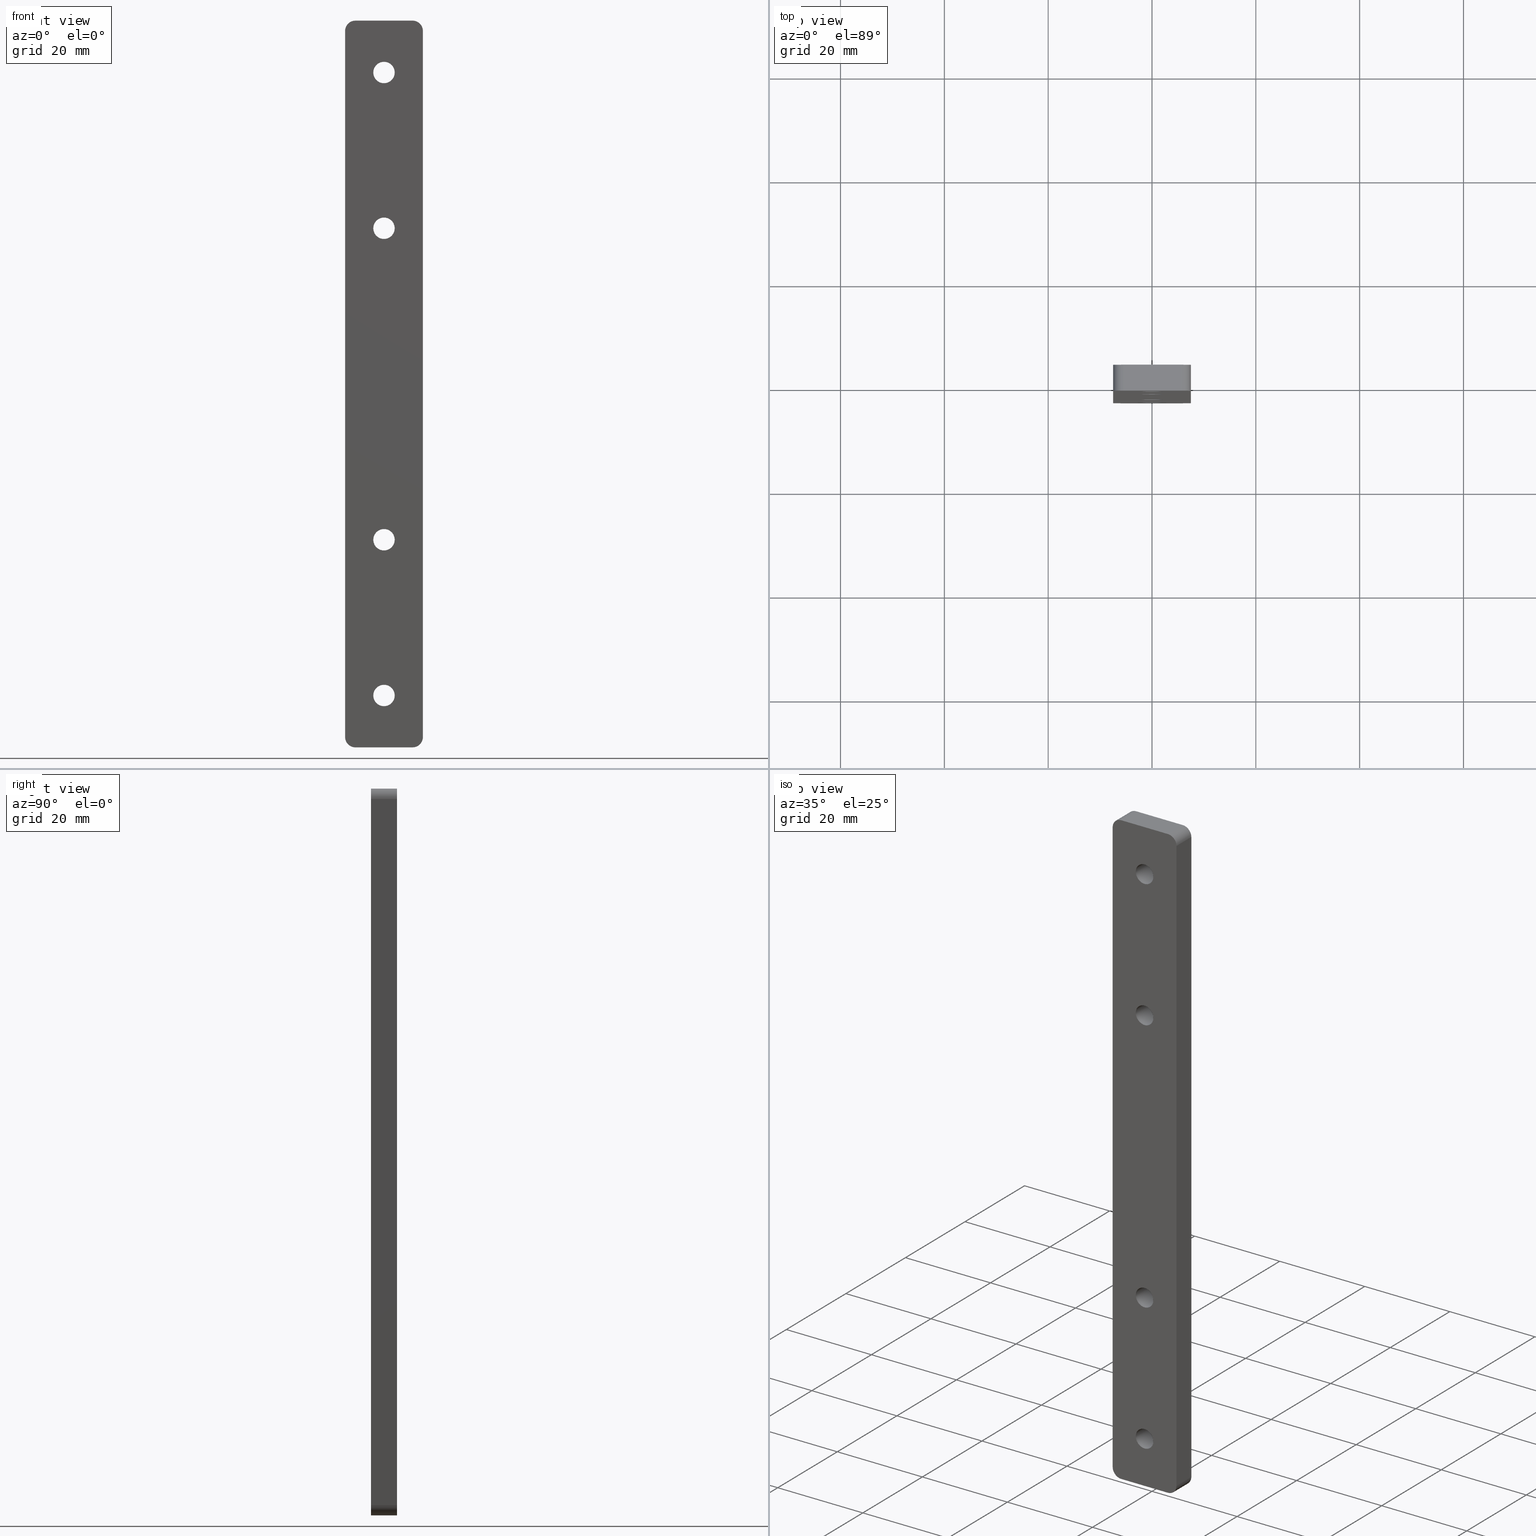
[diagram: canonical four-view strip — front | top / right | iso, engineering-drawing reading convention]
A machine part, canonical four-view strip (front | top / right | iso — engineering-drawing reading convention). The complete STEP part file that produces these views, byte-faithful:
ISO-10303-21;
HEADER;
/* Generated by software containing ST-Developer
 * from STEP Tools, Inc. (www.steptools.com) 
 */

FILE_DESCRIPTION(
/* description */ ('PIATTO X ANGOLARI DI RINFORZO INT.SPEC.'),
/* implementation_level */ '2;1');

FILE_NAME(
/* name */ 
'Q:\\Catalogo\\2_Accessori Dierre\\Per Download Web e catalogo cartace
o\\CATALOGO ELEMENTI ASSEMBLAGGIO\\PAGINA 21\\DPSXX0001021.stp',
/* time_stamp */ '2018-11-02T10:00:43+01:00',
/* author */ ('fzagni'),
/* organization */ (''),
/* preprocessor_version */ 'ST-DEVELOPER v16.1',
/* originating_system */ 'Autodesk Inventor 2016',
/* authorisation */ '');

FILE_SCHEMA (('AUTOMOTIVE_DESIGN { 1 0 10303 214 3 1 1 }'));
ENDSEC;

DATA;
#10=MECHANICAL_DESIGN_GEOMETRIC_PRESENTATION_REPRESENTATION('',(#13),#447);
#11=SHAPE_REPRESENTATION_RELATIONSHIP('SRR','None',#456,#12);
#12=ADVANCED_BREP_SHAPE_REPRESENTATION('',(#14),#446);
#13=STYLED_ITEM('',(#465),#14);
#14=MANIFOLD_SOLID_BREP('Solido1',#263);
#15=PLANE('',#280);
#16=PLANE('',#281);
#17=PLANE('',#287);
#18=PLANE('',#290);
#19=PLANE('',#293);
#20=PLANE('',#294);
#21=LINE('',#399,#37);
#22=LINE('',#402,#38);
#23=LINE('',#405,#39);
#24=LINE('',#407,#40);
#25=LINE('',#408,#41);
#26=LINE('',#411,#42);
#27=LINE('',#415,#43);
#28=LINE('',#419,#44);
#29=LINE('',#424,#45);
#30=LINE('',#427,#46);
#31=LINE('',#428,#47);
#32=LINE('',#433,#48);
#33=LINE('',#434,#49);
#34=LINE('',#437,#50);
#35=LINE('',#438,#51);
#36=LINE('',#442,#52);
#37=VECTOR('',#325,5.);
#38=VECTOR('',#328,5.);
#39=VECTOR('',#331,11.);
#40=VECTOR('',#332,5.);
#41=VECTOR('',#333,11.);
#42=VECTOR('',#336,136.);
#43=VECTOR('',#339,11.);
#44=VECTOR('',#342,136.);
#45=VECTOR('',#349,5.);
#46=VECTOR('',#352,5.);
#47=VECTOR('',#353,136.);
#48=VECTOR('',#358,5.);
#49=VECTOR('',#359,5.);
#50=VECTOR('',#362,11.);
#51=VECTOR('',#363,5.);
#52=VECTOR('',#370,136.);
#53=FACE_BOUND('',#80,.T.);
#54=FACE_BOUND('',#82,.T.);
#55=FACE_BOUND('',#84,.T.);
#56=FACE_BOUND('',#86,.T.);
#57=FACE_BOUND('',#90,.T.);
#58=FACE_BOUND('',#91,.T.);
#59=FACE_BOUND('',#92,.T.);
#60=FACE_BOUND('',#93,.T.);
#61=FACE_BOUND('',#101,.T.);
#62=FACE_BOUND('',#102,.T.);
#63=FACE_BOUND('',#103,.T.);
#64=FACE_BOUND('',#104,.T.);
#65=FACE_OUTER_BOUND('',#79,.T.);
#66=FACE_OUTER_BOUND('',#81,.T.);
#67=FACE_OUTER_BOUND('',#83,.T.);
#68=FACE_OUTER_BOUND('',#85,.T.);
#69=FACE_OUTER_BOUND('',#87,.T.);
#70=FACE_OUTER_BOUND('',#88,.T.);
#71=FACE_OUTER_BOUND('',#89,.T.);
#72=FACE_OUTER_BOUND('',#94,.T.);
#73=FACE_OUTER_BOUND('',#95,.T.);
#74=FACE_OUTER_BOUND('',#96,.T.);
#75=FACE_OUTER_BOUND('',#97,.T.);
#76=FACE_OUTER_BOUND('',#98,.T.);
#77=FACE_OUTER_BOUND('',#99,.T.);
#78=FACE_OUTER_BOUND('',#100,.T.);
#79=EDGE_LOOP('',(#177));
#80=EDGE_LOOP('',(#178));
#81=EDGE_LOOP('',(#179));
#82=EDGE_LOOP('',(#180));
#83=EDGE_LOOP('',(#181));
#84=EDGE_LOOP('',(#182));
#85=EDGE_LOOP('',(#183));
#86=EDGE_LOOP('',(#184));
#87=EDGE_LOOP('',(#185,#186,#187,#188));
#88=EDGE_LOOP('',(#189,#190,#191,#192));
#89=EDGE_LOOP('',(#193,#194,#195,#196,#197,#198,#199,#200));
#90=EDGE_LOOP('',(#201));
#91=EDGE_LOOP('',(#202));
#92=EDGE_LOOP('',(#203));
#93=EDGE_LOOP('',(#204));
#94=EDGE_LOOP('',(#205,#206,#207,#208));
#95=EDGE_LOOP('',(#209,#210,#211,#212));
#96=EDGE_LOOP('',(#213,#214,#215,#216));
#97=EDGE_LOOP('',(#217,#218,#219,#220));
#98=EDGE_LOOP('',(#221,#222,#223,#224));
#99=EDGE_LOOP('',(#225,#226,#227,#228));
#100=EDGE_LOOP('',(#229,#230,#231,#232,#233,#234,#235,#236));
#101=EDGE_LOOP('',(#237));
#102=EDGE_LOOP('',(#238));
#103=EDGE_LOOP('',(#239));
#104=EDGE_LOOP('',(#240));
#105=CIRCLE('',#266,2.067);
#106=CIRCLE('',#267,2.067);
#107=CIRCLE('',#269,2.067);
#108=CIRCLE('',#270,2.067);
#109=CIRCLE('',#272,2.067);
#110=CIRCLE('',#273,2.067);
#111=CIRCLE('',#275,2.067);
#112=CIRCLE('',#276,2.067);
#113=CIRCLE('',#278,2.);
#114=CIRCLE('',#279,2.);
#115=CIRCLE('',#282,2.);
#116=CIRCLE('',#283,2.);
#117=CIRCLE('',#284,2.);
#118=CIRCLE('',#286,2.);
#119=CIRCLE('',#289,2.);
#120=CIRCLE('',#292,2.);
#121=VERTEX_POINT('',#375);
#122=VERTEX_POINT('',#377);
#123=VERTEX_POINT('',#380);
#124=VERTEX_POINT('',#382);
#125=VERTEX_POINT('',#385);
#126=VERTEX_POINT('',#387);
#127=VERTEX_POINT('',#390);
#128=VERTEX_POINT('',#392);
#129=VERTEX_POINT('',#395);
#130=VERTEX_POINT('',#396);
#131=VERTEX_POINT('',#398);
#132=VERTEX_POINT('',#400);
#133=VERTEX_POINT('',#404);
#134=VERTEX_POINT('',#406);
#135=VERTEX_POINT('',#410);
#136=VERTEX_POINT('',#412);
#137=VERTEX_POINT('',#414);
#138=VERTEX_POINT('',#416);
#139=VERTEX_POINT('',#418);
#140=VERTEX_POINT('',#422);
#141=VERTEX_POINT('',#426);
#142=VERTEX_POINT('',#430);
#143=VERTEX_POINT('',#431);
#144=VERTEX_POINT('',#436);
#145=EDGE_CURVE('',#121,#121,#105,.T.);
#146=EDGE_CURVE('',#122,#122,#106,.T.);
#147=EDGE_CURVE('',#123,#123,#107,.T.);
#148=EDGE_CURVE('',#124,#124,#108,.T.);
#149=EDGE_CURVE('',#125,#125,#109,.T.);
#150=EDGE_CURVE('',#126,#126,#110,.T.);
#151=EDGE_CURVE('',#127,#127,#111,.T.);
#152=EDGE_CURVE('',#128,#128,#112,.T.);
#153=EDGE_CURVE('',#129,#130,#113,.T.);
#154=EDGE_CURVE('',#130,#131,#21,.T.);
#155=EDGE_CURVE('',#131,#132,#114,.T.);
#156=EDGE_CURVE('',#132,#129,#22,.T.);
#157=EDGE_CURVE('',#130,#133,#23,.T.);
#158=EDGE_CURVE('',#134,#133,#24,.T.);
#159=EDGE_CURVE('',#134,#131,#25,.T.);
#160=EDGE_CURVE('',#135,#129,#26,.T.);
#161=EDGE_CURVE('',#136,#135,#115,.T.);
#162=EDGE_CURVE('',#137,#136,#27,.T.);
#163=EDGE_CURVE('',#138,#137,#116,.T.);
#164=EDGE_CURVE('',#138,#139,#28,.T.);
#165=EDGE_CURVE('',#133,#139,#117,.T.);
#166=EDGE_CURVE('',#140,#134,#118,.T.);
#167=EDGE_CURVE('',#139,#140,#29,.T.);
#168=EDGE_CURVE('',#141,#138,#30,.T.);
#169=EDGE_CURVE('',#140,#141,#31,.T.);
#170=EDGE_CURVE('',#142,#143,#119,.T.);
#171=EDGE_CURVE('',#143,#136,#32,.T.);
#172=EDGE_CURVE('',#135,#142,#33,.T.);
#173=EDGE_CURVE('',#143,#144,#34,.T.);
#174=EDGE_CURVE('',#137,#144,#35,.T.);
#175=EDGE_CURVE('',#144,#141,#120,.T.);
#176=EDGE_CURVE('',#142,#132,#36,.T.);
#177=ORIENTED_EDGE('',*,*,#145,.F.);
#178=ORIENTED_EDGE('',*,*,#146,.F.);
#179=ORIENTED_EDGE('',*,*,#147,.F.);
#180=ORIENTED_EDGE('',*,*,#148,.F.);
#181=ORIENTED_EDGE('',*,*,#149,.F.);
#182=ORIENTED_EDGE('',*,*,#150,.F.);
#183=ORIENTED_EDGE('',*,*,#151,.F.);
#184=ORIENTED_EDGE('',*,*,#152,.F.);
#185=ORIENTED_EDGE('',*,*,#153,.T.);
#186=ORIENTED_EDGE('',*,*,#154,.T.);
#187=ORIENTED_EDGE('',*,*,#155,.T.);
#188=ORIENTED_EDGE('',*,*,#156,.T.);
#189=ORIENTED_EDGE('',*,*,#154,.F.);
#190=ORIENTED_EDGE('',*,*,#157,.T.);
#191=ORIENTED_EDGE('',*,*,#158,.F.);
#192=ORIENTED_EDGE('',*,*,#159,.T.);
#193=ORIENTED_EDGE('',*,*,#153,.F.);
#194=ORIENTED_EDGE('',*,*,#160,.F.);
#195=ORIENTED_EDGE('',*,*,#161,.F.);
#196=ORIENTED_EDGE('',*,*,#162,.F.);
#197=ORIENTED_EDGE('',*,*,#163,.F.);
#198=ORIENTED_EDGE('',*,*,#164,.T.);
#199=ORIENTED_EDGE('',*,*,#165,.F.);
#200=ORIENTED_EDGE('',*,*,#157,.F.);
#201=ORIENTED_EDGE('',*,*,#146,.T.);
#202=ORIENTED_EDGE('',*,*,#148,.T.);
#203=ORIENTED_EDGE('',*,*,#150,.T.);
#204=ORIENTED_EDGE('',*,*,#152,.T.);
#205=ORIENTED_EDGE('',*,*,#166,.T.);
#206=ORIENTED_EDGE('',*,*,#158,.T.);
#207=ORIENTED_EDGE('',*,*,#165,.T.);
#208=ORIENTED_EDGE('',*,*,#167,.T.);
#209=ORIENTED_EDGE('',*,*,#167,.F.);
#210=ORIENTED_EDGE('',*,*,#164,.F.);
#211=ORIENTED_EDGE('',*,*,#168,.F.);
#212=ORIENTED_EDGE('',*,*,#169,.F.);
#213=ORIENTED_EDGE('',*,*,#170,.T.);
#214=ORIENTED_EDGE('',*,*,#171,.T.);
#215=ORIENTED_EDGE('',*,*,#161,.T.);
#216=ORIENTED_EDGE('',*,*,#172,.T.);
#217=ORIENTED_EDGE('',*,*,#171,.F.);
#218=ORIENTED_EDGE('',*,*,#173,.T.);
#219=ORIENTED_EDGE('',*,*,#174,.F.);
#220=ORIENTED_EDGE('',*,*,#162,.T.);
#221=ORIENTED_EDGE('',*,*,#163,.T.);
#222=ORIENTED_EDGE('',*,*,#174,.T.);
#223=ORIENTED_EDGE('',*,*,#175,.T.);
#224=ORIENTED_EDGE('',*,*,#168,.T.);
#225=ORIENTED_EDGE('',*,*,#156,.F.);
#226=ORIENTED_EDGE('',*,*,#176,.F.);
#227=ORIENTED_EDGE('',*,*,#172,.F.);
#228=ORIENTED_EDGE('',*,*,#160,.T.);
#229=ORIENTED_EDGE('',*,*,#155,.F.);
#230=ORIENTED_EDGE('',*,*,#159,.F.);
#231=ORIENTED_EDGE('',*,*,#166,.F.);
#232=ORIENTED_EDGE('',*,*,#169,.T.);
#233=ORIENTED_EDGE('',*,*,#175,.F.);
#234=ORIENTED_EDGE('',*,*,#173,.F.);
#235=ORIENTED_EDGE('',*,*,#170,.F.);
#236=ORIENTED_EDGE('',*,*,#176,.T.);
#237=ORIENTED_EDGE('',*,*,#145,.T.);
#238=ORIENTED_EDGE('',*,*,#147,.T.);
#239=ORIENTED_EDGE('',*,*,#149,.T.);
#240=ORIENTED_EDGE('',*,*,#151,.T.);
#241=CYLINDRICAL_SURFACE('',#265,2.067);
#242=CYLINDRICAL_SURFACE('',#268,2.067);
#243=CYLINDRICAL_SURFACE('',#271,2.067);
#244=CYLINDRICAL_SURFACE('',#274,2.067);
#245=CYLINDRICAL_SURFACE('',#277,2.);
#246=CYLINDRICAL_SURFACE('',#285,2.);
#247=CYLINDRICAL_SURFACE('',#288,2.);
#248=CYLINDRICAL_SURFACE('',#291,2.);
#249=ADVANCED_FACE('',(#65,#53),#241,.F.);
#250=ADVANCED_FACE('',(#66,#54),#242,.F.);
#251=ADVANCED_FACE('',(#67,#55),#243,.F.);
#252=ADVANCED_FACE('',(#68,#56),#244,.F.);
#253=ADVANCED_FACE('',(#69),#245,.T.);
#254=ADVANCED_FACE('',(#70),#15,.T.);
#255=ADVANCED_FACE('',(#71,#57,#58,#59,#60),#16,.T.);
#256=ADVANCED_FACE('',(#72),#246,.T.);
#257=ADVANCED_FACE('',(#73),#17,.T.);
#258=ADVANCED_FACE('',(#74),#247,.T.);
#259=ADVANCED_FACE('',(#75),#18,.T.);
#260=ADVANCED_FACE('',(#76),#248,.T.);
#261=ADVANCED_FACE('',(#77),#19,.T.);
#262=ADVANCED_FACE('',(#78,#61,#62,#63,#64),#20,.T.);
#263=CLOSED_SHELL('',(#249,#250,#251,#252,#253,#254,#255,#256,#257,#258,
#259,#260,#261,#262));
#264=AXIS2_PLACEMENT_3D('placement',#373,#295,#296);
#265=AXIS2_PLACEMENT_3D('',#374,#297,#298);
#266=AXIS2_PLACEMENT_3D('',#376,#299,#300);
#267=AXIS2_PLACEMENT_3D('',#378,#301,#302);
#268=AXIS2_PLACEMENT_3D('',#379,#303,#304);
#269=AXIS2_PLACEMENT_3D('',#381,#305,#306);
#270=AXIS2_PLACEMENT_3D('',#383,#307,#308);
#271=AXIS2_PLACEMENT_3D('',#384,#309,#310);
#272=AXIS2_PLACEMENT_3D('',#386,#311,#312);
#273=AXIS2_PLACEMENT_3D('',#388,#313,#314);
#274=AXIS2_PLACEMENT_3D('',#389,#315,#316);
#275=AXIS2_PLACEMENT_3D('',#391,#317,#318);
#276=AXIS2_PLACEMENT_3D('',#393,#319,#320);
#277=AXIS2_PLACEMENT_3D('',#394,#321,#322);
#278=AXIS2_PLACEMENT_3D('',#397,#323,#324);
#279=AXIS2_PLACEMENT_3D('',#401,#326,#327);
#280=AXIS2_PLACEMENT_3D('',#403,#329,#330);
#281=AXIS2_PLACEMENT_3D('',#409,#334,#335);
#282=AXIS2_PLACEMENT_3D('',#413,#337,#338);
#283=AXIS2_PLACEMENT_3D('',#417,#340,#341);
#284=AXIS2_PLACEMENT_3D('',#420,#343,#344);
#285=AXIS2_PLACEMENT_3D('',#421,#345,#346);
#286=AXIS2_PLACEMENT_3D('',#423,#347,#348);
#287=AXIS2_PLACEMENT_3D('',#425,#350,#351);
#288=AXIS2_PLACEMENT_3D('',#429,#354,#355);
#289=AXIS2_PLACEMENT_3D('',#432,#356,#357);
#290=AXIS2_PLACEMENT_3D('',#435,#360,#361);
#291=AXIS2_PLACEMENT_3D('',#439,#364,#365);
#292=AXIS2_PLACEMENT_3D('',#440,#366,#367);
#293=AXIS2_PLACEMENT_3D('',#441,#368,#369);
#294=AXIS2_PLACEMENT_3D('',#443,#371,#372);
#295=DIRECTION('axis',(0.,0.,1.));
#296=DIRECTION('refdir',(1.,0.,0.));
#297=DIRECTION('center_axis',(0.,1.,0.));
#298=DIRECTION('ref_axis',(1.,0.,0.));
#299=DIRECTION('center_axis',(0.,1.,0.));
#300=DIRECTION('ref_axis',(1.,0.,0.));
#301=DIRECTION('center_axis',(0.,-1.,0.));
#302=DIRECTION('ref_axis',(1.,0.,0.));
#303=DIRECTION('center_axis',(0.,1.,0.));
#304=DIRECTION('ref_axis',(1.,0.,0.));
#305=DIRECTION('center_axis',(0.,1.,0.));
#306=DIRECTION('ref_axis',(1.,0.,0.));
#307=DIRECTION('center_axis',(0.,-1.,0.));
#308=DIRECTION('ref_axis',(1.,0.,0.));
#309=DIRECTION('center_axis',(0.,1.,0.));
#310=DIRECTION('ref_axis',(1.,0.,0.));
#311=DIRECTION('center_axis',(0.,1.,0.));
#312=DIRECTION('ref_axis',(1.,0.,0.));
#313=DIRECTION('center_axis',(0.,-1.,0.));
#314=DIRECTION('ref_axis',(1.,0.,0.));
#315=DIRECTION('center_axis',(0.,1.,0.));
#316=DIRECTION('ref_axis',(1.,0.,0.));
#317=DIRECTION('center_axis',(0.,1.,0.));
#318=DIRECTION('ref_axis',(1.,0.,0.));
#319=DIRECTION('center_axis',(0.,-1.,0.));
#320=DIRECTION('ref_axis',(1.,0.,0.));
#321=DIRECTION('center_axis',(0.,1.,0.));
#322=DIRECTION('ref_axis',(-0.707106781186546,0.,-0.707106781186549));
#323=DIRECTION('center_axis',(0.,-1.,0.));
#324=DIRECTION('ref_axis',(-0.707106781186546,0.,-0.707106781186549));
#325=DIRECTION('',(0.,-1.,0.));
#326=DIRECTION('center_axis',(0.,1.,0.));
#327=DIRECTION('ref_axis',(-0.707106781186546,0.,-0.707106781186549));
#328=DIRECTION('',(0.,1.,0.));
#329=DIRECTION('center_axis',(0.,0.,-1.));
#330=DIRECTION('ref_axis',(-1.,0.,0.));
#331=DIRECTION('',(1.,0.,0.));
#332=DIRECTION('',(0.,1.,0.));
#333=DIRECTION('',(-1.,0.,0.));
#334=DIRECTION('center_axis',(0.,1.,0.));
#335=DIRECTION('ref_axis',(-1.,0.,0.));
#336=DIRECTION('',(0.,0.,-1.));
#337=DIRECTION('center_axis',(0.,-1.,0.));
#338=DIRECTION('ref_axis',(-0.707106781186546,0.,0.707106781186549));
#339=DIRECTION('',(-1.,0.,0.));
#340=DIRECTION('center_axis',(0.,-1.,0.));
#341=DIRECTION('ref_axis',(0.707106781186546,0.,0.707106781186549));
#342=DIRECTION('',(0.,0.,-1.));
#343=DIRECTION('center_axis',(0.,-1.,0.));
#344=DIRECTION('ref_axis',(0.707106781186546,0.,-0.707106781186549));
#345=DIRECTION('center_axis',(0.,-1.,0.));
#346=DIRECTION('ref_axis',(0.707106781186546,0.,-0.707106781186549));
#347=DIRECTION('center_axis',(0.,1.,0.));
#348=DIRECTION('ref_axis',(0.707106781186546,0.,-0.707106781186549));
#349=DIRECTION('',(0.,-1.,0.));
#350=DIRECTION('center_axis',(1.,0.,0.));
#351=DIRECTION('ref_axis',(0.,1.,0.));
#352=DIRECTION('',(0.,1.,0.));
#353=DIRECTION('',(0.,0.,1.));
#354=DIRECTION('center_axis',(0.,-1.,0.));
#355=DIRECTION('ref_axis',(-0.707106781186546,0.,0.707106781186549));
#356=DIRECTION('center_axis',(0.,1.,0.));
#357=DIRECTION('ref_axis',(-0.707106781186546,0.,0.707106781186549));
#358=DIRECTION('',(0.,1.,0.));
#359=DIRECTION('',(0.,-1.,0.));
#360=DIRECTION('center_axis',(0.,0.,1.));
#361=DIRECTION('ref_axis',(1.,0.,0.));
#362=DIRECTION('',(1.,0.,0.));
#363=DIRECTION('',(0.,-1.,0.));
#364=DIRECTION('center_axis',(0.,1.,0.));
#365=DIRECTION('ref_axis',(0.707106781186546,0.,0.707106781186549));
#366=DIRECTION('center_axis',(0.,1.,0.));
#367=DIRECTION('ref_axis',(0.707106781186546,0.,0.707106781186549));
#368=DIRECTION('center_axis',(-1.,0.,0.));
#369=DIRECTION('ref_axis',(0.,-1.,0.));
#370=DIRECTION('',(0.,0.,-1.));
#371=DIRECTION('center_axis',(0.,-1.,0.));
#372=DIRECTION('ref_axis',(1.,0.,0.));
#373=CARTESIAN_POINT('',(0.,0.,0.));
#374=CARTESIAN_POINT('Origin',(0.,-138.390028036054,-30.));
#375=CARTESIAN_POINT('',(-2.067,-2.5,-30.));
#376=CARTESIAN_POINT('Origin',(0.,-2.5,-30.));
#377=CARTESIAN_POINT('',(2.067,2.5,-30.));
#378=CARTESIAN_POINT('Origin',(0.,2.5,-30.));
#379=CARTESIAN_POINT('Origin',(0.,-138.390028036054,60.));
#380=CARTESIAN_POINT('',(-2.067,-2.5,60.));
#381=CARTESIAN_POINT('Origin',(0.,-2.5,60.));
#382=CARTESIAN_POINT('',(2.067,2.5,60.));
#383=CARTESIAN_POINT('Origin',(0.,2.5,60.));
#384=CARTESIAN_POINT('Origin',(0.,-138.390028036054,30.));
#385=CARTESIAN_POINT('',(-2.067,-2.5,30.));
#386=CARTESIAN_POINT('Origin',(0.,-2.5,30.));
#387=CARTESIAN_POINT('',(2.067,2.5,30.));
#388=CARTESIAN_POINT('Origin',(0.,2.5,30.));
#389=CARTESIAN_POINT('Origin',(0.,-138.390028036054,-60.));
#390=CARTESIAN_POINT('',(-2.067,-2.5,-60.));
#391=CARTESIAN_POINT('Origin',(0.,-2.5,-60.));
#392=CARTESIAN_POINT('',(2.067,2.5,-60.));
#393=CARTESIAN_POINT('Origin',(0.,2.5,-60.));
#394=CARTESIAN_POINT('Origin',(-5.5,1.25,-68.));
#395=CARTESIAN_POINT('',(-7.5,2.5,-68.));
#396=CARTESIAN_POINT('',(-5.5,2.5,-70.));
#397=CARTESIAN_POINT('Origin',(-5.5,2.5,-68.));
#398=CARTESIAN_POINT('',(-5.5,-2.5,-70.));
#399=CARTESIAN_POINT('',(-5.5,1.25,-70.));
#400=CARTESIAN_POINT('',(-7.5,-2.5,-68.));
#401=CARTESIAN_POINT('Origin',(-5.5,-2.5,-68.));
#402=CARTESIAN_POINT('',(-7.5,1.25,-68.));
#403=CARTESIAN_POINT('Origin',(0.,0.,-70.));
#404=CARTESIAN_POINT('',(5.5,2.5,-70.));
#405=CARTESIAN_POINT('',(-7.5,2.5,-70.));
#406=CARTESIAN_POINT('',(5.5,-2.5,-70.));
#407=CARTESIAN_POINT('',(5.5,-1.25,-70.));
#408=CARTESIAN_POINT('',(7.5,-2.5,-70.));
#409=CARTESIAN_POINT('Origin',(7.5,2.5,0.));
#410=CARTESIAN_POINT('',(-7.5,2.5,68.));
#411=CARTESIAN_POINT('',(-7.5,2.5,0.));
#412=CARTESIAN_POINT('',(-5.5,2.5,70.));
#413=CARTESIAN_POINT('Origin',(-5.5,2.5,68.));
#414=CARTESIAN_POINT('',(5.5,2.5,70.));
#415=CARTESIAN_POINT('',(-7.5,2.5,70.));
#416=CARTESIAN_POINT('',(7.5,2.5,68.));
#417=CARTESIAN_POINT('Origin',(5.5,2.5,68.));
#418=CARTESIAN_POINT('',(7.5,2.5,-68.));
#419=CARTESIAN_POINT('',(7.5,2.5,0.));
#420=CARTESIAN_POINT('Origin',(5.5,2.5,-68.));
#421=CARTESIAN_POINT('Origin',(5.5,-1.25,-68.));
#422=CARTESIAN_POINT('',(7.5,-2.5,-68.));
#423=CARTESIAN_POINT('Origin',(5.5,-2.5,-68.));
#424=CARTESIAN_POINT('',(7.5,-1.25,-68.));
#425=CARTESIAN_POINT('Origin',(7.5,-2.5,0.));
#426=CARTESIAN_POINT('',(7.5,-2.5,68.));
#427=CARTESIAN_POINT('',(7.5,-1.25,68.));
#428=CARTESIAN_POINT('',(7.5,-2.5,0.));
#429=CARTESIAN_POINT('Origin',(-5.5,1.25,68.));
#430=CARTESIAN_POINT('',(-7.5,-2.5,68.));
#431=CARTESIAN_POINT('',(-5.5,-2.5,70.));
#432=CARTESIAN_POINT('Origin',(-5.5,-2.5,68.));
#433=CARTESIAN_POINT('',(-5.5,1.25,70.));
#434=CARTESIAN_POINT('',(-7.5,1.25,68.));
#435=CARTESIAN_POINT('Origin',(0.,0.,70.));
#436=CARTESIAN_POINT('',(5.5,-2.5,70.));
#437=CARTESIAN_POINT('',(7.5,-2.5,70.));
#438=CARTESIAN_POINT('',(5.5,-1.25,70.));
#439=CARTESIAN_POINT('Origin',(5.5,-1.25,68.));
#440=CARTESIAN_POINT('Origin',(5.5,-2.5,68.));
#441=CARTESIAN_POINT('Origin',(-7.5,2.5,0.));
#442=CARTESIAN_POINT('',(-7.5,-2.5,0.));
#443=CARTESIAN_POINT('Origin',(-7.5,-2.5,0.));
#444=UNCERTAINTY_MEASURE_WITH_UNIT(LENGTH_MEASURE(0.01),#448,
'DISTANCE_ACCURACY_VALUE',
'Maximum model space distance between geometric entities at asserted c
onnectivities');
#445=UNCERTAINTY_MEASURE_WITH_UNIT(LENGTH_MEASURE(1.E-6),#448,
'DISTANCE_ACCURACY_VALUE',
'Maximum model space distance between geometric entities at asserted c
onnectivities');
#446=(
GEOMETRIC_REPRESENTATION_CONTEXT(3)
GLOBAL_UNCERTAINTY_ASSIGNED_CONTEXT((#444))
GLOBAL_UNIT_ASSIGNED_CONTEXT((#448,#451,#449))
REPRESENTATION_CONTEXT('','3D')
);
#447=(
GEOMETRIC_REPRESENTATION_CONTEXT(3)
GLOBAL_UNCERTAINTY_ASSIGNED_CONTEXT((#445))
GLOBAL_UNIT_ASSIGNED_CONTEXT((#448,#451,#449))
REPRESENTATION_CONTEXT('','3D')
);
#448=(
LENGTH_UNIT()
NAMED_UNIT(*)
SI_UNIT(.MILLI.,.METRE.)
);
#449=(
NAMED_UNIT(*)
SI_UNIT($,.STERADIAN.)
SOLID_ANGLE_UNIT()
);
#450=DIMENSIONAL_EXPONENTS(0.,0.,0.,0.,0.,0.,0.);
#451=(
CONVERSION_BASED_UNIT('degree',#453)
NAMED_UNIT(#450)
PLANE_ANGLE_UNIT()
);
#452=(
NAMED_UNIT(*)
PLANE_ANGLE_UNIT()
SI_UNIT($,.RADIAN.)
);
#453=PLANE_ANGLE_MEASURE_WITH_UNIT(PLANE_ANGLE_MEASURE(0.01745329252),#452);
#454=SHAPE_DEFINITION_REPRESENTATION(#455,#456);
#455=PRODUCT_DEFINITION_SHAPE('',$,#458);
#456=SHAPE_REPRESENTATION('',(#264),#446);
#457=PRODUCT_DEFINITION_CONTEXT('part definition',#462,'design');
#458=PRODUCT_DEFINITION('DPSXX0001021','DPSXX0001021',#459,#457);
#459=PRODUCT_DEFINITION_FORMATION('','A',#464);
#460=PRODUCT_RELATED_PRODUCT_CATEGORY('DPSXX0001021','DPSXX0001021',(#464));
#461=APPLICATION_PROTOCOL_DEFINITION('international standard',
'automotive_design',2009,#462);
#462=APPLICATION_CONTEXT(
'Core Data for Automotive Mechanical Design Process');
#463=PRODUCT_CONTEXT('part definition',#462,'mechanical');
#464=PRODUCT('DPSXX0001021','DPSXX0001021',$,(#463));
#465=PRESENTATION_STYLE_ASSIGNMENT((#466));
#466=SURFACE_STYLE_USAGE(.BOTH.,#467);
#467=SURFACE_SIDE_STYLE('',(#468));
#468=SURFACE_STYLE_FILL_AREA(#469);
#469=FILL_AREA_STYLE('',(#470));
#470=FILL_AREA_STYLE_COLOUR('',#471);
#471=COLOUR_RGB('',0.83921568627451,0.886274509803922,0.854901960784314);
ENDSEC;
END-ISO-10303-21;
